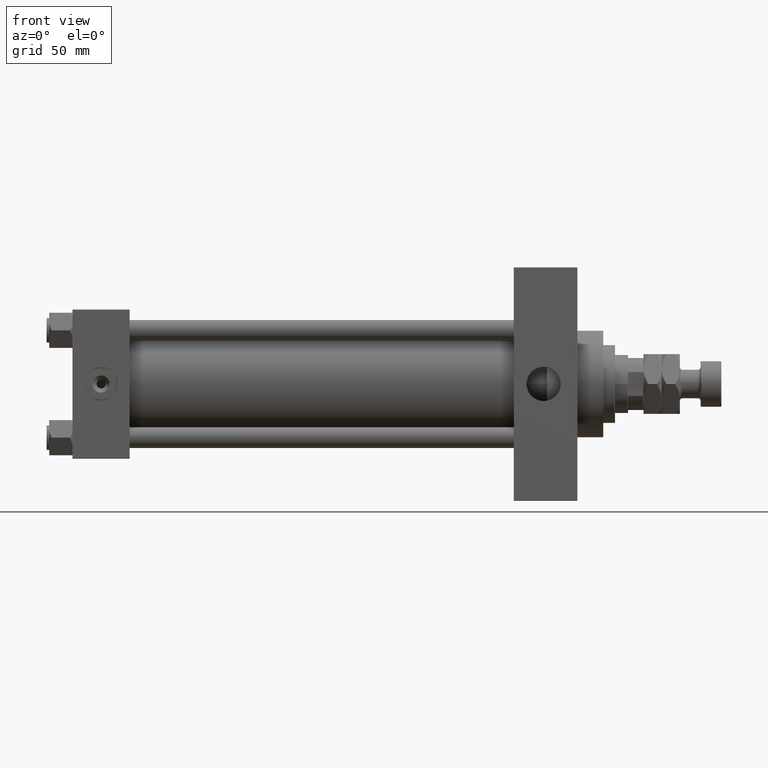
[diagram: clean part render]
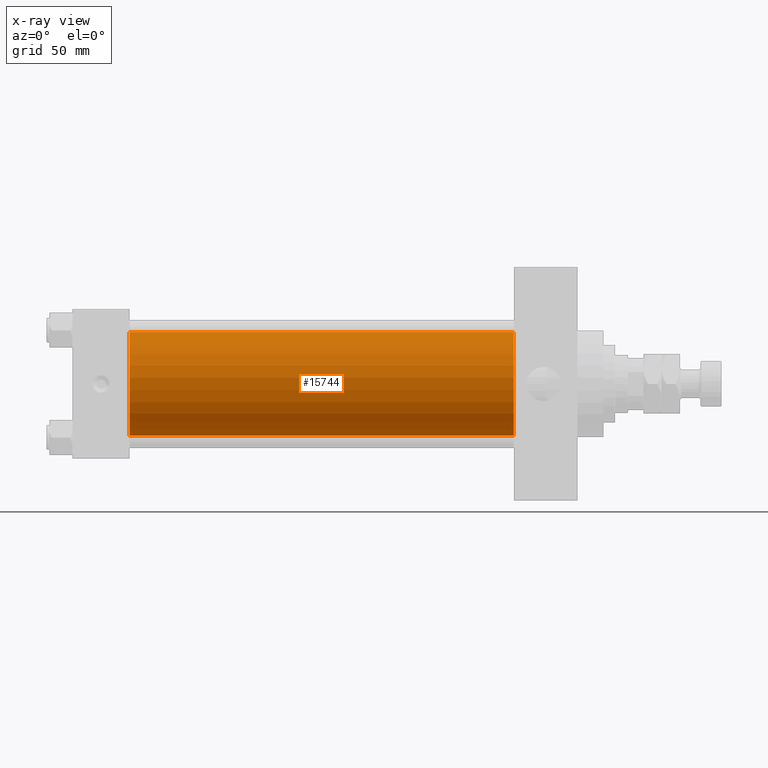
[diagram: x-ray — body ghosted, one internal face saturated and labeled with its STEP entity id]
A machine part, front view, then the same camera in x-ray: the body is ghosted and one INTERNAL B-rep face — a face not visible from any outside direction — is saturated and labeled: STEP entity #15744.
In plain terms, the highlighted cylindrical surface (partial cylindrical patch) has radius 40 mm, axis along (-1, -0, -0).
Its self-contained STEP definition (entity closure, byte-faithful):
#426 = DIRECTION ( 'NONE',  ( 0.000000000000000000, 0.000000000000000000, 1.000000000000000000 ) ) ;
#509 = CARTESIAN_POINT ( 'NONE',  ( 44.00000000000000000, 2.296501982624201990E-15, -40.00000000000000000 ) ) ;
#2484 = CIRCLE ( 'NONE', #18264, 40.00000000000000000 ) ;
#3633 = CARTESIAN_POINT ( 'NONE',  ( 339.9999999999999432, 2.296501982624201990E-15, -40.00000000000000000 ) ) ;
#10795 = DIRECTION ( 'NONE',  ( -1.000000000000000000, -0.000000000000000000, -0.000000000000000000 ) ) ;
#11088 = ORIENTED_EDGE ( 'NONE', *, *, #37892, .T. ) ;
#11923 = VERTEX_POINT ( 'NONE', #25585 ) ;
#12287 = VERTEX_POINT ( 'NONE', #3633 ) ;
#12874 = ORIENTED_EDGE ( 'NONE', *, *, #42803, .F. ) ;
#15744 = ADVANCED_FACE ( 'NONE', ( #17066 ), #24639, .F. ) ;
#17066 = FACE_OUTER_BOUND ( 'NONE', #19645, .T. ) ;
#17244 = CIRCLE ( 'NONE', #18902, 40.00000000000000000 ) ;
#17513 = VERTEX_POINT ( 'NONE', #509 ) ;
#18193 = DIRECTION ( 'NONE',  ( -1.000000000000000000, -0.000000000000000000, -0.000000000000000000 ) ) ;
#18264 = AXIS2_PLACEMENT_3D ( 'NONE', #26500, #41871, #50478 ) ;
#18741 = VECTOR ( 'NONE', #10795, 1000.000000000000000 ) ;
#18835 = EDGE_CURVE ( 'NONE', #12287, #17513, #22635, .T. ) ;
#18902 = AXIS2_PLACEMENT_3D ( 'NONE', #36416, #44497, #24686 ) ;
#19645 = EDGE_LOOP ( 'NONE', ( #11088, #31213, #12874, #46178 ) ) ;
#20306 = EDGE_CURVE ( 'NONE', #24701, #11923, #50160, .T. ) ;
#22635 = LINE ( 'NONE', #50778, #24361 ) ;
#23020 = CARTESIAN_POINT ( 'NONE',  ( 339.9999999999999432, -2.602085213965210642E-15, 40.00000000000000000 ) ) ;
#24361 = VECTOR ( 'NONE', #18193, 1000.000000000000000 ) ;
#24639 = CYLINDRICAL_SURFACE ( 'NONE', #41740, 40.00000000000000000 ) ;
#24686 = DIRECTION ( 'NONE',  ( 0.000000000000000000, 0.000000000000000000, -1.000000000000000000 ) ) ;
#24701 = VERTEX_POINT ( 'NONE', #43922 ) ;
#25585 = CARTESIAN_POINT ( 'NONE',  ( 44.00000000000000000, -2.602085213965210642E-15, 40.00000000000000000 ) ) ;
#26500 = CARTESIAN_POINT ( 'NONE',  ( 44.00000000000000000, -2.602085213965210642E-15, 0.000000000000000000 ) ) ;
#28046 = CARTESIAN_POINT ( 'NONE',  ( 339.9999999999999432, -2.602085213965210642E-15, 0.000000000000000000 ) ) ;
#31213 = ORIENTED_EDGE ( 'NONE', *, *, #18835, .T. ) ;
#36416 = CARTESIAN_POINT ( 'NONE',  ( 339.9999999999999432, -2.602085213965210642E-15, 0.000000000000000000 ) ) ;
#37892 = EDGE_CURVE ( 'NONE', #24701, #12287, #17244, .T. ) ;
#40024 = DIRECTION ( 'NONE',  ( -1.000000000000000000, -0.000000000000000000, -0.000000000000000000 ) ) ;
#41740 = AXIS2_PLACEMENT_3D ( 'NONE', #28046, #40024, #426 ) ;
#41871 = DIRECTION ( 'NONE',  ( 1.000000000000000000, 0.000000000000000000, 0.000000000000000000 ) ) ;
#42803 = EDGE_CURVE ( 'NONE', #11923, #17513, #2484, .T. ) ;
#43922 = CARTESIAN_POINT ( 'NONE',  ( 339.9999999999999432, -2.602085213965210642E-15, 40.00000000000000000 ) ) ;
#44497 = DIRECTION ( 'NONE',  ( 1.000000000000000000, 0.000000000000000000, 0.000000000000000000 ) ) ;
#46178 = ORIENTED_EDGE ( 'NONE', *, *, #20306, .F. ) ;
#50160 = LINE ( 'NONE', #23020, #18741 ) ;
#50478 = DIRECTION ( 'NONE',  ( 0.000000000000000000, 0.000000000000000000, -1.000000000000000000 ) ) ;
#50778 = CARTESIAN_POINT ( 'NONE',  ( 339.9999999999999432, 2.296501982624201990E-15, -40.00000000000000000 ) ) ;